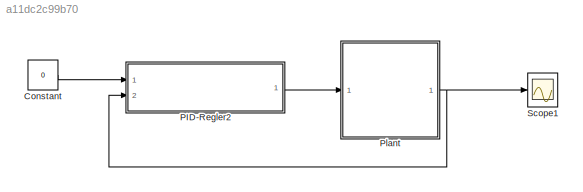
MODEL slx_a11dc2c99b70
KIND model
CONFIG AbsTol = auto
CONFIG FixedStep = auto
CONFIG MaxStep = auto
CONFIG MinStep = auto
CONFIG RelTol = 1e-3
CONFIG SampleTimeConstraint = Unconstrained
CONFIG Solver = VariableStepAuto
CONFIG SolverMode = Auto
CONFIG SolverName = VariableStepAuto
CONFIG StartTime = 0.0
CONFIG StopTime = 10.0
BLOCK [Constant] Constant
  Value = 0
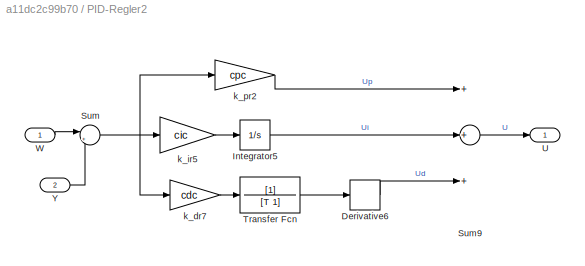
BLOCK [SubSystem] PID-Regler2
  Ports = [2, 1]
  RequestExecContextInheritance = off
  Variant = off
BLOCK [Derivative] PID-Regler2/Derivative6
BLOCK [Integrator] PID-Regler2/Integrator5
  Ports = [1, 1]
BLOCK [Sum] PID-Regler2/Sum
  IconShape = round
  InputSameDT = off
  Inputs = |+-
  OutDataTypeStr = Inherit: Inherit via internal rule
  Ports = [2, 1]
  SaturateOnIntegerOverflow = off
BLOCK [Sum] PID-Regler2/Sum9
  InputSameDT = off
  Inputs = +++
  OutDataTypeStr = Inherit: Inherit via internal rule
  Ports = [3, 1]
  SaturateOnIntegerOverflow = off
BLOCK [TransferFcn] PID-Regler2/Transfer Fcn
  Denominator = [T 1]
BLOCK [Outport] PID-Regler2/U
  IconDisplay = Port number
BLOCK [Inport] PID-Regler2/W
  IconDisplay = Port number
BLOCK [Inport] PID-Regler2/Y
  IconDisplay = Port number
  Port = 2
BLOCK [Gain] PID-Regler2/k_dr7
  Gain = cdc
  OutDataTypeStr = Inherit: Inherit via internal rule
  ParamDataTypeStr = Inherit: Inherit via internal rule
  SaturateOnIntegerOverflow = off
BLOCK [Gain] PID-Regler2/k_ir5
  Gain = cic
  OutDataTypeStr = Inherit: Inherit via internal rule
  ParamDataTypeStr = Inherit: Inherit via internal rule
  SaturateOnIntegerOverflow = off
BLOCK [Gain] PID-Regler2/k_pr2
  Gain = cpc
  OutDataTypeStr = Inherit: Inherit via internal rule
  ParamDataTypeStr = Inherit: Inherit via internal rule
  SaturateOnIntegerOverflow = off
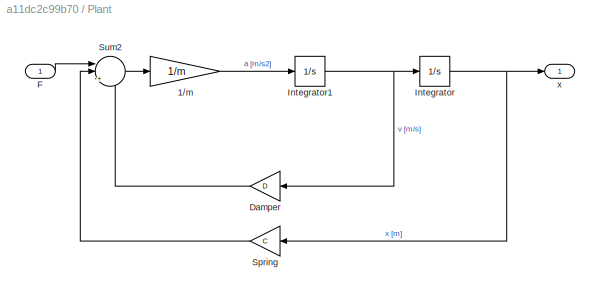
BLOCK [SubSystem] Plant
  Ports = [1, 1]
  RequestExecContextInheritance = off
  Variant = off
BLOCK [Gain] Plant/1//m
  Gain = 1/m
  OutDataTypeStr = Inherit: Inherit via internal rule
  ParamDataTypeStr = Inherit: Inherit via internal rule
  SaturateOnIntegerOverflow = off
BLOCK [Gain] Plant/Damper
  Gain = D
  OutDataTypeStr = Inherit: Inherit via internal rule
  ParamDataTypeStr = Inherit: Inherit via internal rule
  SaturateOnIntegerOverflow = off
BLOCK [Inport] Plant/F
  IconDisplay = Port number
BLOCK [Integrator] Plant/Integrator
  InitialCondition = X0
  Ports = [1, 1]
BLOCK [Integrator] Plant/Integrator1
  InitialCondition = v0
  Ports = [1, 1]
BLOCK [Gain] Plant/Spring
  Gain = C
  OutDataTypeStr = Inherit: Inherit via internal rule
  ParamDataTypeStr = Inherit: Inherit via internal rule
  SaturateOnIntegerOverflow = off
BLOCK [Sum] Plant/Sum2
  IconShape = round
  InputSameDT = off
  Inputs = ||+--
  OutDataTypeStr = Inherit: Inherit via internal rule
  Ports = [3, 1]
  SaturateOnIntegerOverflow = off
BLOCK [Outport] Plant/x
  IconDisplay = Port number
BLOCK [Scope] Scope1
  Ports = [1]
  ScopeSpecificationString = Simulink.scopes.TimeScopeBlockCfg('CurrentConfiguration', extmgr.ConfigurationSet(extmgr.Configuration('Core','General UI',true,'FigureColor',[0.941176470588235 0.941176470588235 0.941176470588235]),extmgr.Configuration('Core','Source UI',true),extmgr.Configuration('Sources','WiredSimulink',true,'DataLoggingSaveFormat','StructureWithTime','DataLoggingDecimation','1','DataLoggingDecimateData',true)...<+2899ch>
LINE Constant:1 -> PID-Regler2:1
LINE PID-Regler2/Derivative6:1 -> PID-Regler2/Sum9:3
LINE PID-Regler2/Integrator5:1 -> PID-Regler2/Sum9:2
LINE PID-Regler2/Sum9:1 -> PID-Regler2/U:1
NET PID-Regler2/Sum:1 -> PID-Regler2/k_dr7:1, PID-Regler2/k_ir5:1, PID-Regler2/k_pr2:1
LINE PID-Regler2/Transfer Fcn:1 -> PID-Regler2/Derivative6:1
LINE PID-Regler2/W:1 -> PID-Regler2/Sum:1
LINE PID-Regler2/Y:1 -> PID-Regler2/Sum:2
LINE PID-Regler2/k_dr7:1 -> PID-Regler2/Transfer Fcn:1
LINE PID-Regler2/k_ir5:1 -> PID-Regler2/Integrator5:1
LINE PID-Regler2/k_pr2:1 -> PID-Regler2/Sum9:1
LINE PID-Regler2:1 -> Plant:1
LINE Plant/1//m:1 -> Plant/Integrator1:1
LINE Plant/Damper:1 -> Plant/Sum2:3
LINE Plant/F:1 -> Plant/Sum2:1
NET Plant/Integrator1:1 -> Plant/Damper:1, Plant/Integrator:1
NET Plant/Integrator:1 -> Plant/Spring:1, Plant/x:1
LINE Plant/Spring:1 -> Plant/Sum2:2
LINE Plant/Sum2:1 -> Plant/1//m:1
NET Plant:1 -> PID-Regler2:2, Scope1:1
note: NET lines group one-source signal fan-out (src -> all destinations, sorted); 1:1 wires keep LINE
